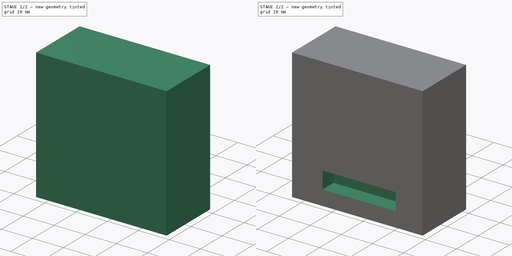
[diagram: build sequence overview — one tinted view per stage of 2, left to right]
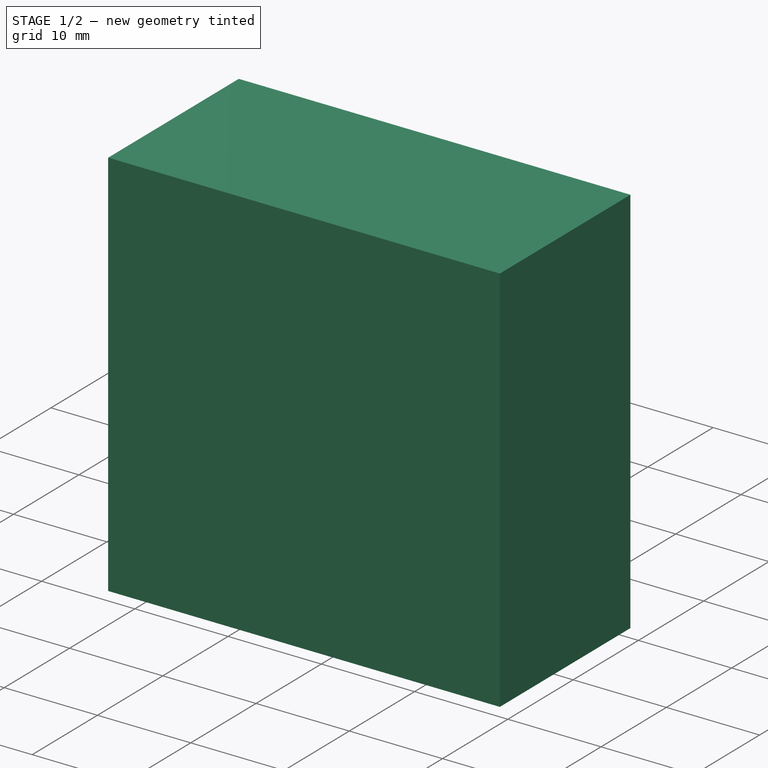
[diagram: stage 1 of 2 — iso view after this stage's code; geometry added in this stage tinted green]
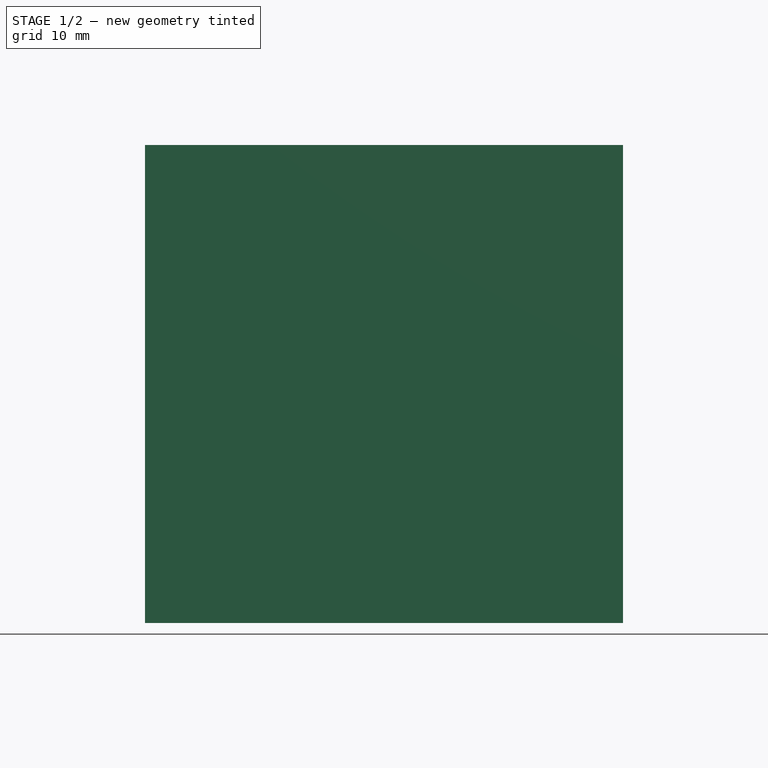
[diagram: stage 1 of 2 — front view after this stage's code; geometry added in this stage tinted green]
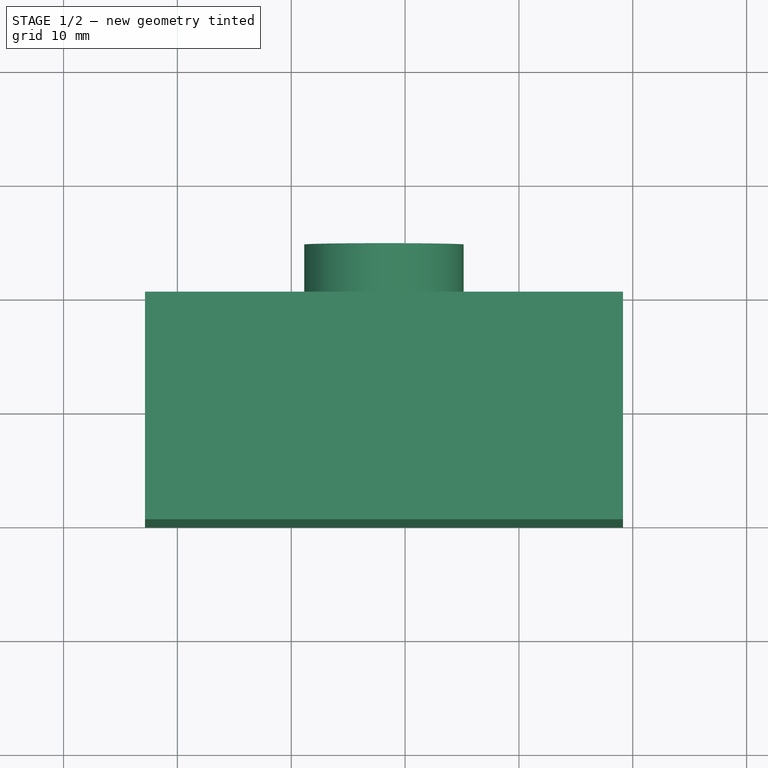
[diagram: stage 1 of 2 — top view after this stage's code; geometry added in this stage tinted green]
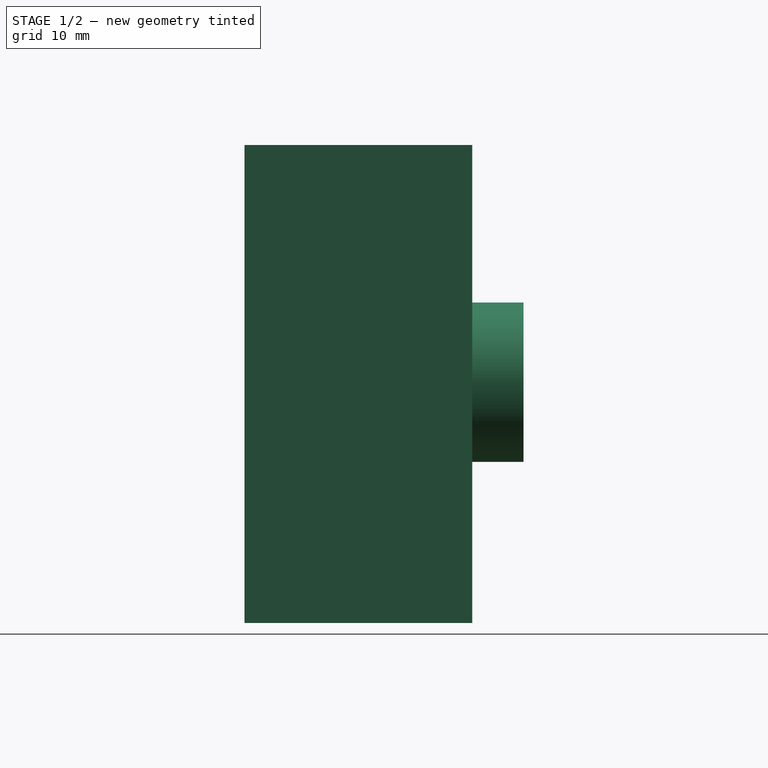
[diagram: stage 1 of 2 — right view after this stage's code; geometry added in this stage tinted green]
FCSTD DOCUMENT  (FreeCAD 1.0R39319 (Git))
Label: Camara
License: Creative Commons Attribution 4.0
LicenseURL: https://creativecommons.org/licenses/by/4.0/
objects: Sketcher::SketchObject×4, PartDesign::Pad×2, PartDesign::Hole×1, PartDesign::Pocket×1, PartDesign::Body×1
note: 21 computed .brp shape members not serialized (recipe doc carries the construction recipe); baked Part::Feature solids carry a one-line shape summary decoded from their .brp

FEATURE [Sketcher::SketchObject] Sketch
  ArcFitTolerance = 1e-06
  AttachmentSupport = -> [XZ_Plane]
  FullyConstrained = false
  MakeInternals = false
  MapMode = 5
  Placement = pos=(0,0,0) rot=(1,0,0;1.5708rad)
  sketch-geometry (4):
    g0: LineSegment StartX=-12.8525 StartY=11.6213 StartZ=0 EndX=-12.8525 EndY=-30.3787 EndZ=0
    g1: LineSegment StartX=-12.8525 StartY=-30.3787 StartZ=0 EndX=29.1475 EndY=-30.3787 EndZ=0
    g2: LineSegment StartX=29.1475 StartY=-30.3787 StartZ=0 EndX=29.1475 EndY=11.6213 EndZ=0
    g3: LineSegment StartX=29.1475 StartY=11.6213 StartZ=0 EndX=-12.8525 EndY=11.6213 EndZ=0
  constraints (10):
    c: Coincident(g0,g1)
    c: Coincident(g1,g2)
    c: Coincident(g2,g3)
    c: Coincident(g3,g0)
    c: Vertical(g0)
    c: Vertical(g2)
    c: Horizontal(g1)
    c: Horizontal(g3)
    c: DistanceX(g3,g3) = 42
    c: DistanceY(g0,g0) = 42
FEATURE [PartDesign::Pad] Pad
  Direction = (0,-1,2e-16)
  Length = 20
  Length2 = 10
  Placement = pos=(0,0,0) rot=(1,0,0;1.5708rad)
  Profile = -> Sketch
  ReferenceAxis = -> Sketch [N_Axis]
  Refine = true
  Suppressed = false
  Type = 0
FEATURE [Sketcher::SketchObject] Sketch001
  ArcFitTolerance = 1e-06
  AttachmentSupport = -> [Pad]
  FullyConstrained = false
  MakeInternals = false
  MapMode = 5
  Placement = pos=(0,-2.1e-15,0) rot=(-1,0,0;1.5708rad)
  sketch-geometry (1):
    g0: Circle CenterX=8.14286 CenterY=9.21914 CenterZ=0 NormalX=0 NormalY=0 NormalZ=1 AngleXU=0 Radius=7
  constraints (1):
    c: Diameter(g0) = 14
FEATURE [PartDesign::Pad] Pad001
  BaseFeature = -> Pad
  Direction = (0,1,2e-16)
  Length = 4.5
  Length2 = 10
  Placement = pos=(0,0,0) rot=(1,0,0;1.5708rad)
  Profile = -> Sketch001
  ReferenceAxis = -> Sketch001 [N_Axis]
  Refine = true
  Suppressed = false
  Type = 0
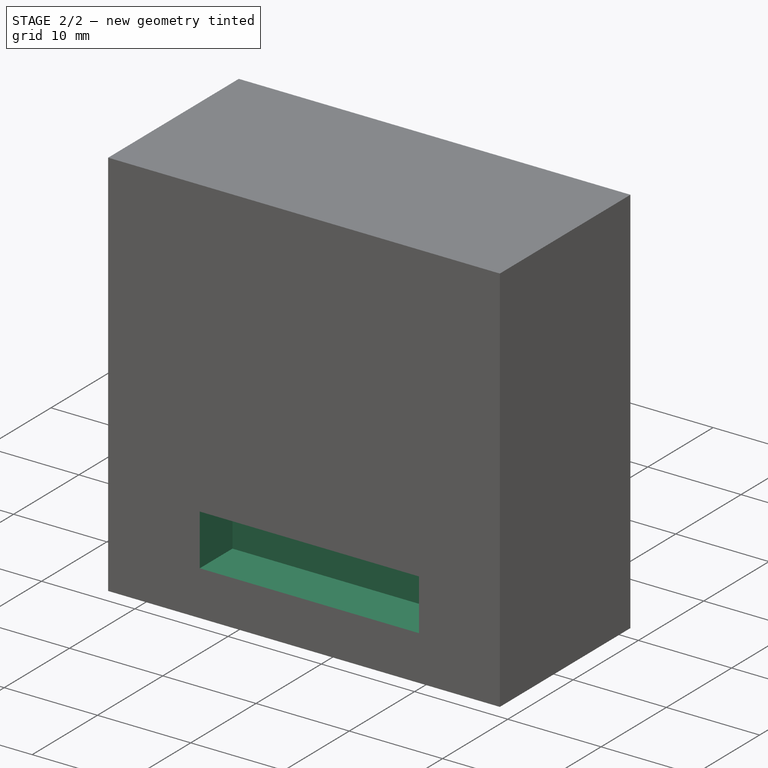
[diagram: stage 2 of 2 — iso view after this stage's code; geometry added in this stage tinted green]
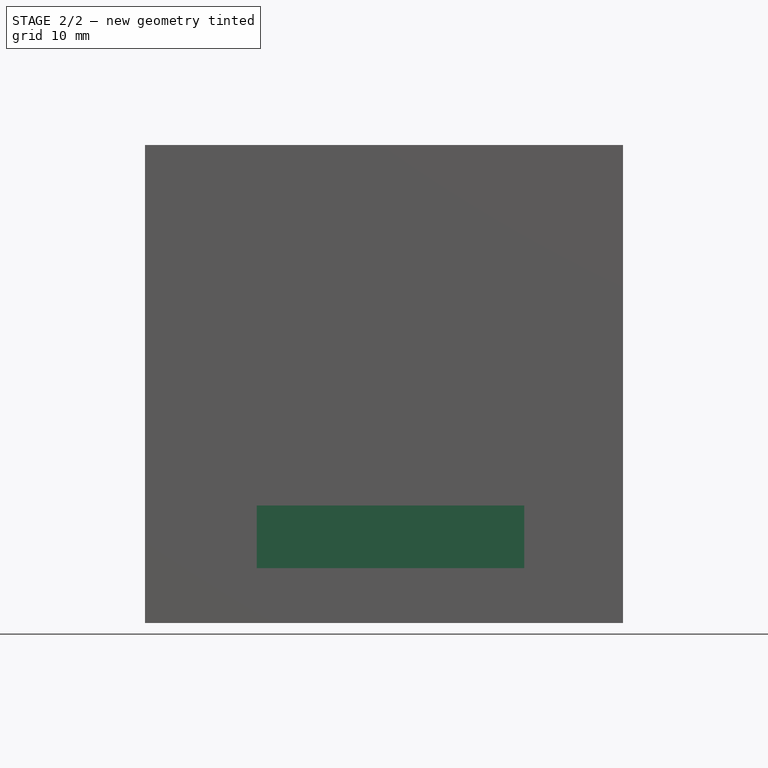
[diagram: stage 2 of 2 — front view after this stage's code; geometry added in this stage tinted green]
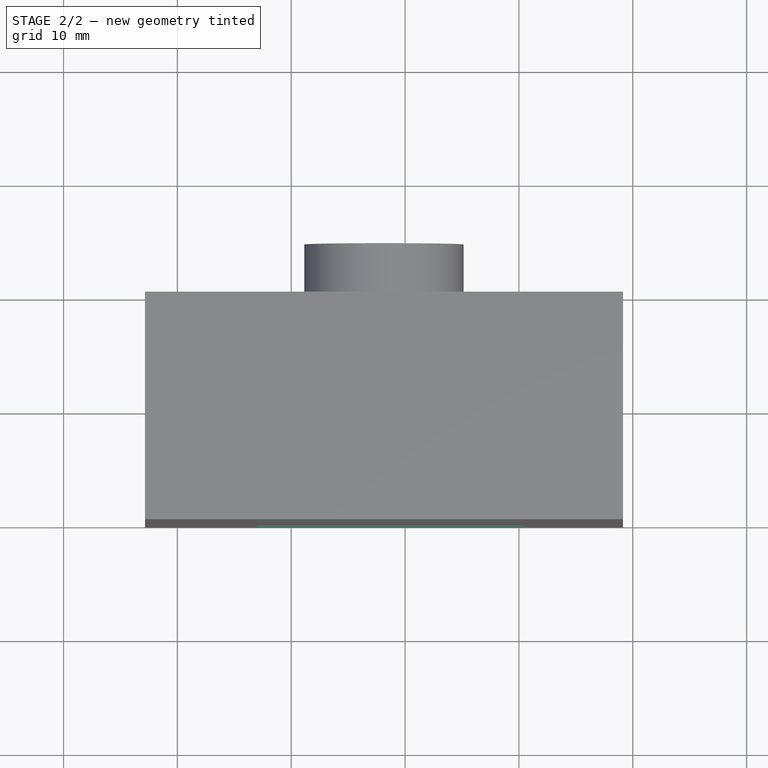
[diagram: stage 2 of 2 — top view after this stage's code; geometry added in this stage tinted green]
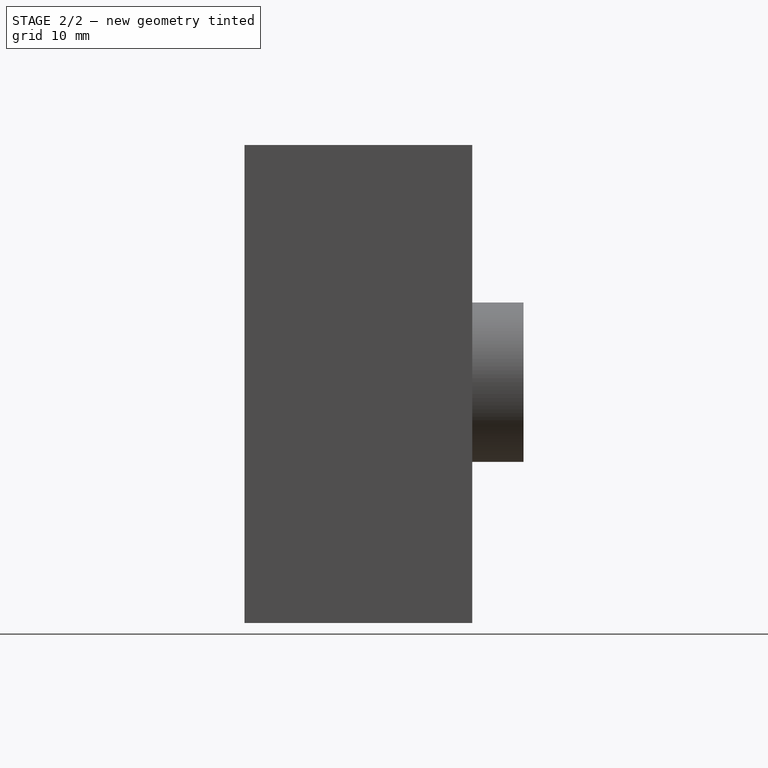
[diagram: stage 2 of 2 — right view after this stage's code; geometry added in this stage tinted green]
FEATURE [Sketcher::SketchObject] Sketch002
  ArcFitTolerance = 1e-06
  AttachmentSupport = -> [Pad001]
  FullyConstrained = false
  MakeInternals = false
  MapMode = 5
  Placement = pos=(0,4.5,0) rot=(-1,0,0;1.5708rad)
  sketch-geometry (1):
    g0: Circle CenterX=8.27745 CenterY=9.21909 CenterZ=0 NormalX=0 NormalY=0 NormalZ=1 AngleXU=0 Radius=5.62223
FEATURE [PartDesign::Hole] Hole
  BaseFeature = -> Pad001
  CustomThreadClearance = 0
  Depth = 0.5
  DepthType = 0
  Diameter = 6
  DrillForDepth = false
  DrillPoint = 1
  DrillPointAngle = 118
  HoleCutCountersinkAngle = 90
  HoleCutCustomValues = false
  HoleCutDepth = 0
  HoleCutDiameter = 6.1
  HoleCutType = 0
  ModelThread = false
  Placement = pos=(0,0,0) rot=(1,0,0;1.5708rad)
  Profile = -> Sketch002
  Refine = true
  Suppressed = false
  Tapered = false
  TaperedAngle = 90
  ThreadClass = 0
  ThreadDepth = 0.5
  ThreadDepthType = 0
  ThreadDirection = 0
  ThreadFit = 0
  ThreadSize = 0
  ThreadType = 0
  Threaded = false
  UseCustomThreadClearance = false
FEATURE [Sketcher::SketchObject] Sketch003
  ArcFitTolerance = 1e-06
  AttachmentSupport = -> [Hole]
  FullyConstrained = false
  MakeInternals = false
  MapMode = 5
  Placement = pos=(0,-20,0) rot=(1,0,0;1.5708rad)
  sketch-geometry (4):
    g0: LineSegment StartX=-3.02818 StartY=-20.0516 StartZ=0 EndX=-3.02818 EndY=-25.5516 EndZ=0
    g1: LineSegment StartX=-3.02818 StartY=-25.5516 StartZ=0 EndX=20.4718 EndY=-25.5516 EndZ=0
    g2: LineSegment StartX=20.4718 StartY=-25.5516 StartZ=0 EndX=20.4718 EndY=-20.0516 EndZ=0
    g3: LineSegment StartX=20.4718 StartY=-20.0516 StartZ=0 EndX=-3.02818 EndY=-20.0516 EndZ=0
  constraints (10):
    c: Coincident(g0,g1)
    c: Coincident(g1,g2)
    c: Coincident(g2,g3)
    c: Coincident(g3,g0)
    c: Vertical(g0)
    c: Vertical(g2)
    c: Horizontal(g1)
    c: Horizontal(g3)
    c: DistanceX(g3,g3) = 23.5
    c: DistanceY(g0,g0) = 5.5
FEATURE [PartDesign::Pocket] Pocket
  BaseFeature = -> Hole
  Direction = (0,1,-2e-16)
  Length = 5
  Length2 = 5
  Placement = pos=(0,0,0) rot=(1,0,0;1.5708rad)
  Profile = -> Sketch003
  ReferenceAxis = -> Sketch003 [N_Axis]
  Refine = true
  Suppressed = false
  Type = 0
FEATURE [PartDesign::Body] Body
  AllowCompound = false
  Group = -> [Sketch,Pad,Sketch001,Pad001,Sketch002,Hole,Sketch003,Pocket]
  Origin = -> Origin
  Tip = -> Pocket
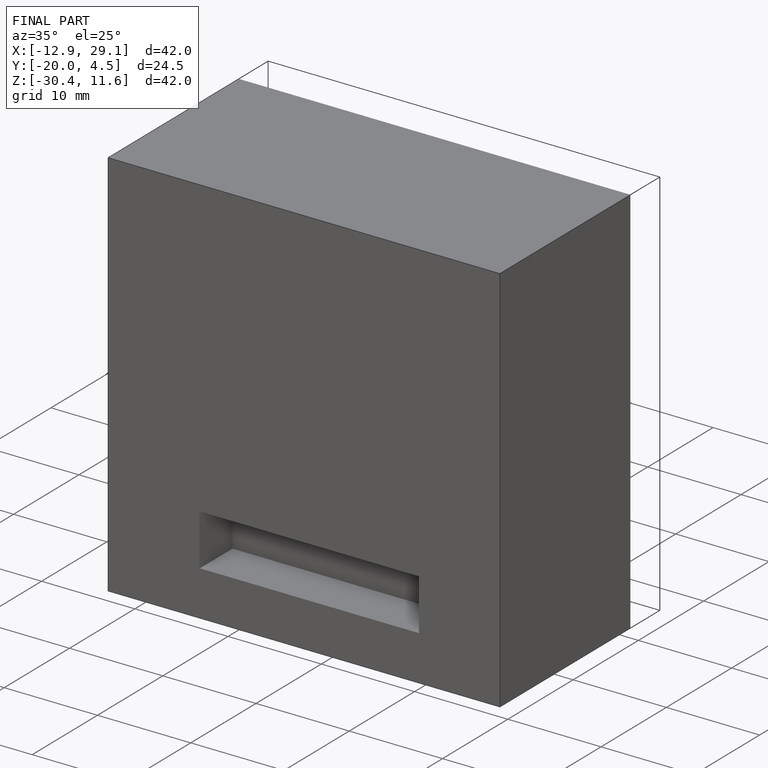
[diagram: finished part — iso view with bounding-box wireframe]
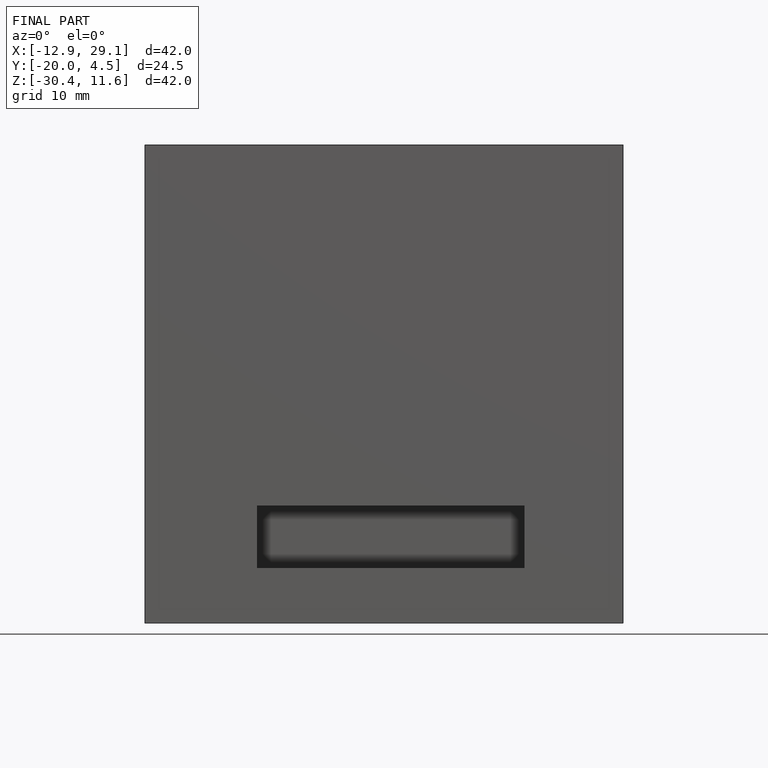
[diagram: finished part — front view with bounding-box wireframe]
